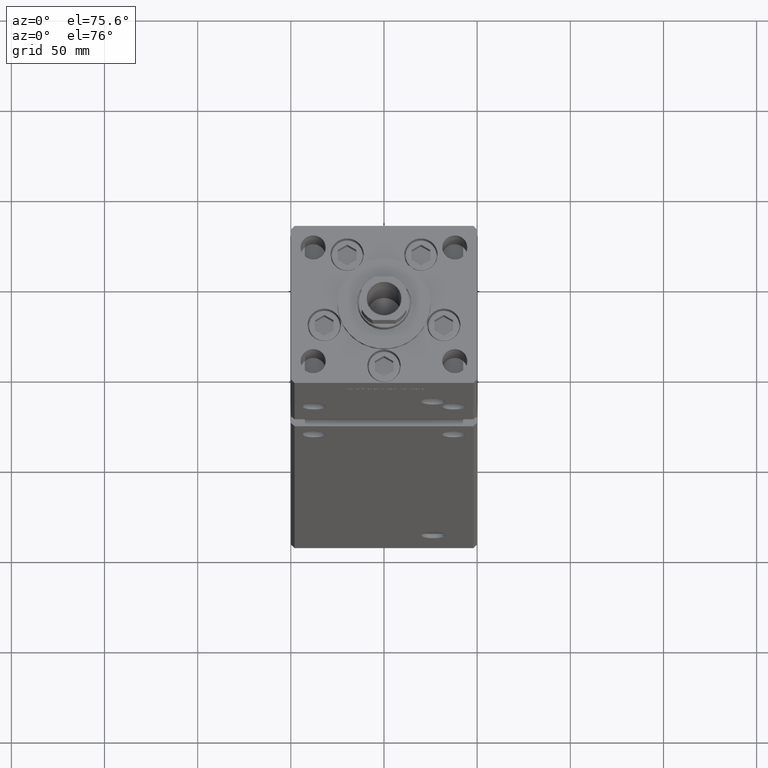
[diagram: clean part render]
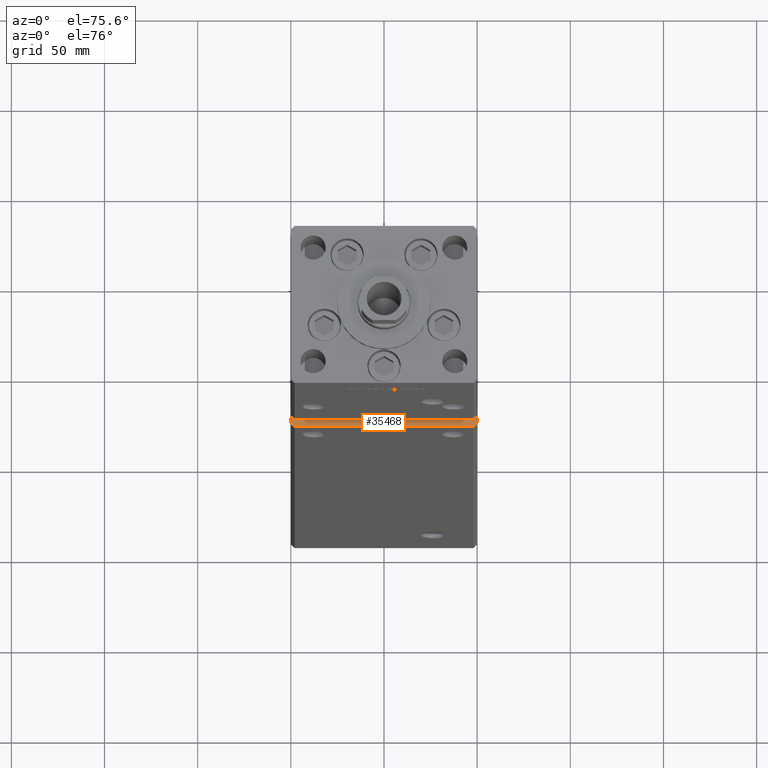
[diagram: same view with one face highlighted and labeled with its STEP entity id]
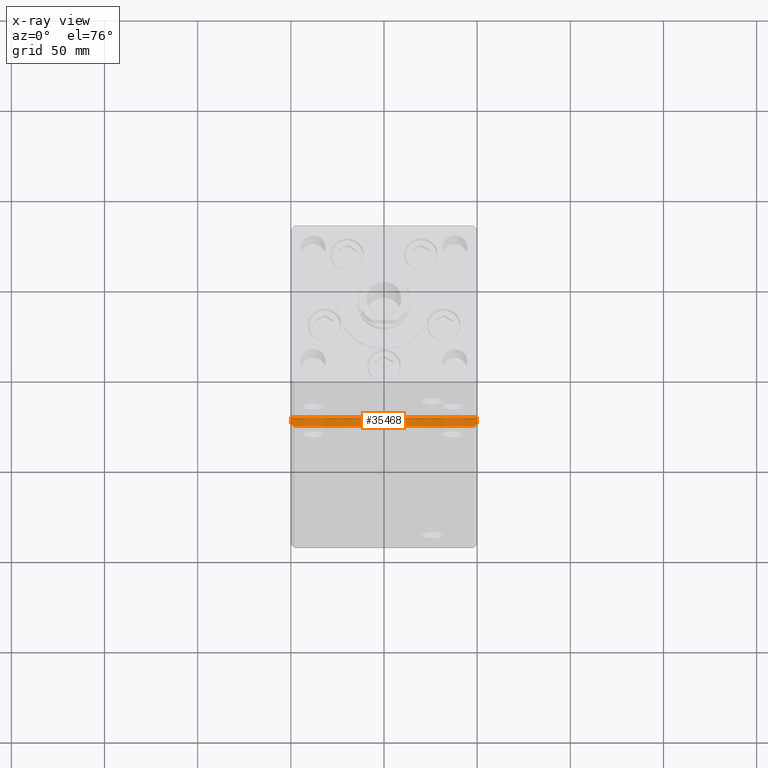
[diagram: x-ray of the same camera — body ghosted, the highlighted face saturated]
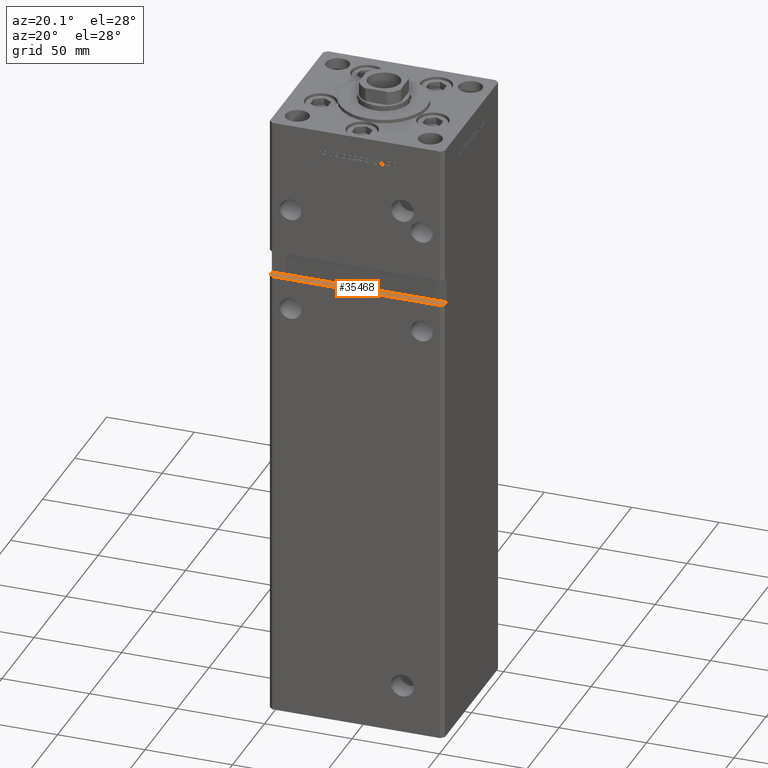
[diagram: same view with one face highlighted and labeled with its STEP entity id]
A machine part, auxiliary view. The second image highlights one B-rep face of the part: STEP entity #35468.
The next image is the same camera in x-ray: the body ghosted, the highlighted face saturated — about 0% of this face is hidden behind the body in this view.
A second angle (auxiliary view) of the same face is appended — the face is thin or edge-on in the first view.
In plain terms, the highlighted planar face has unit normal (0, 0, -1).
Its self-contained STEP definition (entity closure, byte-faithful):
#749 = DIRECTION ( 'NONE',  ( 1.000000000000000000, 0.000000000000000000, 0.000000000000000000 ) ) ;
#1188 = CARTESIAN_POINT ( 'NONE',  ( 47.99999999999998579, -43.50000000000000000, 244.0000000000000000 ) ) ;
#1275 = CARTESIAN_POINT ( 'NONE',  ( -49.99999999999998579, -38.50000000000000000, 244.0000000000000000 ) ) ;
#1523 = CARTESIAN_POINT ( 'NONE',  ( -49.99999999999998579, -38.50000000000000000, 244.0000000000000000 ) ) ;
#2180 = LINE ( 'NONE', #18539, #17422 ) ;
#3268 = ORIENTED_EDGE ( 'NONE', *, *, #30504, .F. ) ;
#4163 = DIRECTION ( 'NONE',  ( -0.7071067811865474617, 0.7071067811865474617, 0.000000000000000000 ) ) ;
#4932 = LINE ( 'NONE', #21287, #33841 ) ;
#5738 = AXIS2_PLACEMENT_3D ( 'NONE', #1275, #26492, #22188 ) ;
#8449 = CARTESIAN_POINT ( 'NONE',  ( -49.99999999999998579, -41.49999999999999289, 244.0000000000000000 ) ) ;
#16996 = CARTESIAN_POINT ( 'NONE',  ( -49.99999999999998579, -38.50000000000000000, 244.0000000000000000 ) ) ;
#17390 = FACE_OUTER_BOUND ( 'NONE', #47401, .T. ) ;
#17422 = VECTOR ( 'NONE', #30900, 1000.000000000000000 ) ;
#18539 = CARTESIAN_POINT ( 'NONE',  ( -49.99999999999998579, -43.50000000000000000, 244.0000000000000000 ) ) ;
#19532 = VERTEX_POINT ( 'NONE', #35421 ) ;
#19994 = LINE ( 'NONE', #8449, #49510 ) ;
#20851 = ORIENTED_EDGE ( 'NONE', *, *, #46256, .T. ) ;
#21287 = CARTESIAN_POINT ( 'NONE',  ( 49.99999999999998579, -38.50000000000000000, 244.0000000000000000 ) ) ;
#21570 = EDGE_CURVE ( 'NONE', #31716, #25869, #2180, .T. ) ;
#21738 = CARTESIAN_POINT ( 'NONE',  ( 49.99999999999998579, -41.49999999999999289, 244.0000000000000000 ) ) ;
#22001 = LINE ( 'NONE', #21738, #36451 ) ;
#22188 = DIRECTION ( 'NONE',  ( -1.000000000000000000, 0.000000000000000000, -0.000000000000000000 ) ) ;
#24529 = LINE ( 'NONE', #16996, #30741 ) ;
#24551 = VECTOR ( 'NONE', #749, 1000.000000000000000 ) ;
#24552 = CARTESIAN_POINT ( 'NONE',  ( -47.99999999999998579, -43.50000000000000000, 244.0000000000000000 ) ) ;
#24614 = VERTEX_POINT ( 'NONE', #28802 ) ;
#25174 = LINE ( 'NONE', #1523, #24551 ) ;
#25600 = ORIENTED_EDGE ( 'NONE', *, *, #36866, .F. ) ;
#25869 = VERTEX_POINT ( 'NONE', #1188 ) ;
#26492 = DIRECTION ( 'NONE',  ( 0.000000000000000000, 0.000000000000000000, -1.000000000000000000 ) ) ;
#26837 = ORIENTED_EDGE ( 'NONE', *, *, #34174, .F. ) ;
#28802 = CARTESIAN_POINT ( 'NONE',  ( -49.99999999999998579, -41.49999999999999289, 244.0000000000000000 ) ) ;
#30115 = EDGE_CURVE ( 'NONE', #25869, #19532, #22001, .T. ) ;
#30504 = EDGE_CURVE ( 'NONE', #31836, #19532, #4932, .T. ) ;
#30741 = VECTOR ( 'NONE', #41200, 1000.000000000000000 ) ;
#30900 = DIRECTION ( 'NONE',  ( 1.000000000000000000, 0.000000000000000000, 0.000000000000000000 ) ) ;
#31451 = ORIENTED_EDGE ( 'NONE', *, *, #30115, .T. ) ;
#31716 = VERTEX_POINT ( 'NONE', #24552 ) ;
#31836 = VERTEX_POINT ( 'NONE', #37944 ) ;
#33841 = VECTOR ( 'NONE', #34960, 1000.000000000000000 ) ;
#34174 = EDGE_CURVE ( 'NONE', #39581, #31836, #25174, .T. ) ;
#34275 = PLANE ( 'NONE',  #5738 ) ;
#34960 = DIRECTION ( 'NONE',  ( -0.000000000000000000, -1.000000000000000000, -0.000000000000000000 ) ) ;
#35421 = CARTESIAN_POINT ( 'NONE',  ( 49.99999999999998579, -41.49999999999999289, 244.0000000000000000 ) ) ;
#35468 = ADVANCED_FACE ( 'NONE', ( #17390 ), #34275, .F. ) ;
#36451 = VECTOR ( 'NONE', #38385, 1000.000000000000114 ) ;
#36866 = EDGE_CURVE ( 'NONE', #31716, #24614, #19994, .T. ) ;
#37944 = CARTESIAN_POINT ( 'NONE',  ( 49.99999999999998579, -38.49999999999999289, 244.0000000000000000 ) ) ;
#38385 = DIRECTION ( 'NONE',  ( 0.7071067811865474617, 0.7071067811865474617, 0.000000000000000000 ) ) ;
#39581 = VERTEX_POINT ( 'NONE', #43862 ) ;
#41200 = DIRECTION ( 'NONE',  ( -0.000000000000000000, -1.000000000000000000, -0.000000000000000000 ) ) ;
#43862 = CARTESIAN_POINT ( 'NONE',  ( -49.99999999999998579, -38.50000000000000000, 244.0000000000000000 ) ) ;
#45501 = ORIENTED_EDGE ( 'NONE', *, *, #21570, .T. ) ;
#46256 = EDGE_CURVE ( 'NONE', #39581, #24614, #24529, .T. ) ;
#47401 = EDGE_LOOP ( 'NONE', ( #45501, #31451, #3268, #26837, #20851, #25600 ) ) ;
#49510 = VECTOR ( 'NONE', #4163, 1000.000000000000114 ) ;